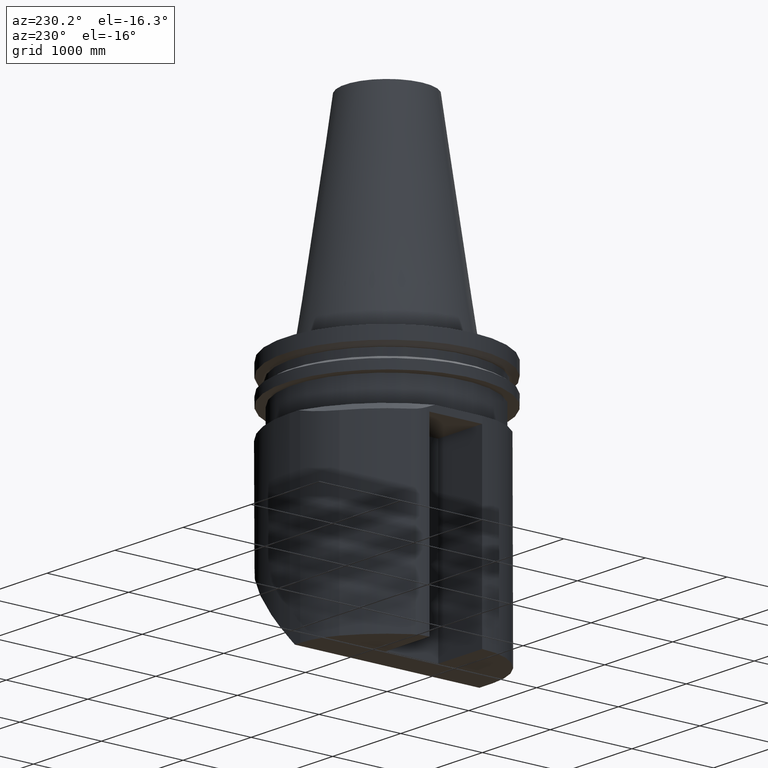
[diagram: clean part render]
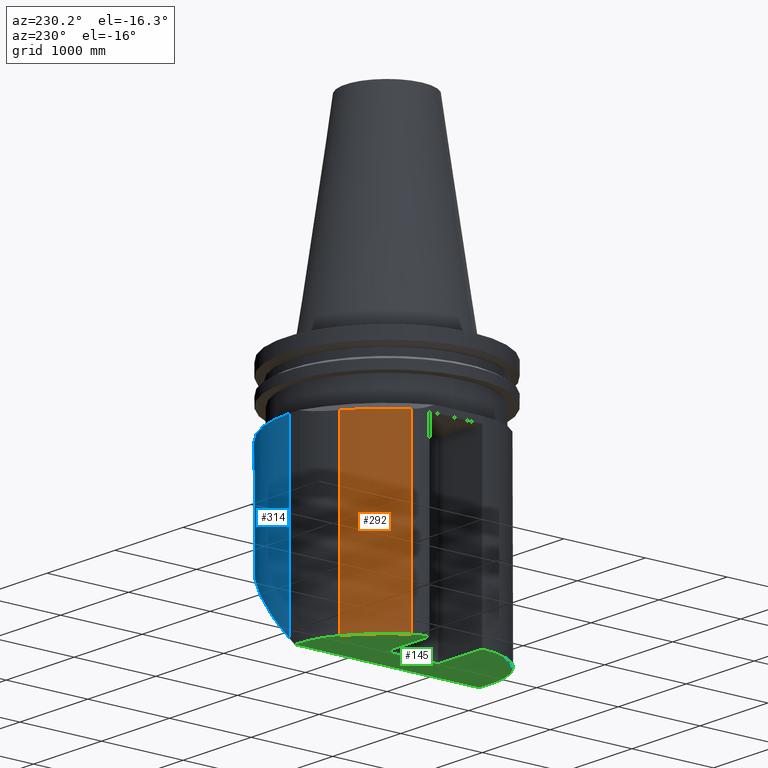
[diagram: same view with three faces highlighted in distinct colors, each labeled with its STEP entity id]
A machine part, auxiliary view with three faces highlighted in distinct colors.
Their STEP definitions:

[orange] entity #292 — the highlighted cylindrical surface (partial cylindrical patch) has radius 1587.5 mm, axis along (0, -0, -1).
#149=EDGE_CURVE('Unnamed[1]',#406,#407,#408,.T.);
#172=EDGE_CURVE('Unnamed[1]',#441,#407,#442,.T.);
#197=EDGE_CURVE('Unnamed[1]',#454,#406,#479,.T.);
#256=EDGE_CURVE('Unnamed[1]',#454,#441,#556,.T.);
#292=ADVANCED_FACE('Unnamed[1]',(#603),#604,.T.);
#406=VERTEX_POINT('',#741);
#407=VERTEX_POINT('',#742);
#408=LINE('',#743,#744);
#441=VERTEX_POINT('',#786);
#442=CIRCLE('',#787,62.5000000000001);
#454=VERTEX_POINT('',#802);
#479=CIRCLE('',#839,62.5000000000001);
#556=LINE('',#955,#956);
#603=FACE_OUTER_BOUND('',#1048,.T.);
#604=CYLINDRICAL_SURFACE('',#1049,62.5000000000001);
#741=CARTESIAN_POINT('',(-34.7885625290881,51.923076923077,-125.0));
#742=CARTESIAN_POINT('',(-34.788562529088,51.923076923077,-37.9289321881347));
#743=CARTESIAN_POINT('',(-34.788562529088,51.923076923077,-315.0));
#744=VECTOR('',#1203,1.0);
#786=CARTESIAN_POINT('',(-53.2178262076672,32.7736628061353,-37.9289321881323));
#787=AXIS2_PLACEMENT_3D('',#1251,#1252,#1253);
#802=CARTESIAN_POINT('',(-53.2178262076672,32.7736628061353,-125.0));
#839=AXIS2_PLACEMENT_3D('',#1293,#1294,#1295);
#955=CARTESIAN_POINT('',(-53.2178262076672,32.7736628061353,-19.05));
#956=VECTOR('',#1387,1.0);
#1048=EDGE_LOOP('',(#1445,#1446,#1447,#1448));
#1049=AXIS2_PLACEMENT_3D('',#1449,#1450,#1451);
#1203=DIRECTION('',(-1.22464679914735E-016,6.12323399573677E-017,1.0));
#1251=CARTESIAN_POINT('',(4.64495453992761E-015,-2.32247726996381E-015,-37.9289321881346));
#1252=DIRECTION('',(1.22464679914735E-016,-6.12323399573677E-017,-1.0));
#1253=DIRECTION('',(1.0,-4.28626379701574E-016,1.22464679914735E-016));
#1293=CARTESIAN_POINT('',(1.53080849893419E-014,-7.65404249467096E-015,-125.0));
#1294=DIRECTION('',(1.22464679914735E-016,-6.12323399573677E-017,-1.0));
#1295=DIRECTION('',(1.0,-4.28626379701574E-016,1.22464679914735E-016));
#1387=DIRECTION('',(-1.22464679914735E-016,6.12323399573677E-017,1.0));
#1445=ORIENTED_EDGE('',*,*,#256,.T.);
#1446=ORIENTED_EDGE('',*,*,#172,.T.);
#1447=ORIENTED_EDGE('',*,*,#149,.F.);
#1448=ORIENTED_EDGE('',*,*,#197,.F.);
#1449=CARTESIAN_POINT('',(9.97651976463475E-015,-4.98825988231738E-015,-81.4644660940672));
#1450=DIRECTION('',(1.22464679914735E-016,-6.12323399573677E-017,-1.0));
#1451=DIRECTION('',(1.0,-4.28626379701574E-016,1.22464679914735E-016));

[blue] entity #314 — the highlighted cylindrical surface (partial cylindrical patch) has radius 1447.8 mm, axis along (-0, 0, 1).
#119=EDGE_CURVE('Unnamed[1]',#357,#358,#359,.T.);
#138=EDGE_CURVE('Unnamed[1]',#387,#357,#388,.T.);
#300=EDGE_CURVE('Unnamed[1]',#387,#612,#613,.T.);
#314=ADVANCED_FACE('Unnamed[1]',(#630),#631,.T.);
#324=EDGE_CURVE('Unnamed[1]',#358,#612,#645,.T.);
#357=VERTEX_POINT('',#673);
#358=VERTEX_POINT('',#674);
#359=ELLIPSE('',#675,80.6101730552766,57.0);
#387=VERTEX_POINT('',#715);
#388=ELLIPSE('',#716,166.656850809296,57.0);
#612=VERTEX_POINT('',#1064);
#613=CIRCLE('',#1065,57.0);
#630=FACE_OUTER_BOUND('',#1098,.T.);
#631=CYLINDRICAL_SURFACE('',#1099,57.0);
#645=LINE('',#1117,#1118);
#673=CARTESIAN_POINT('',(27.8323961923588,40.7722971338992,-82.1676038076373));
#674=CARTESIAN_POINT('',(-12.0,57.0000000000002,-122.000000000006));
#675=AXIS2_PLACEMENT_3D('',#1150,#1151,#1152);
#715=CARTESIAN_POINT('',(45.0000000000001,-2.14313189850787E-014,-34.9999999999998));
#716=AXIS2_PLACEMENT_3D('',#1180,#1181,#1182);
#1064=CARTESIAN_POINT('',(-12.0,57.0000000000002,-34.9999999999998));
#1065=AXIS2_PLACEMENT_3D('',#1455,#1456,#1457);
#1098=EDGE_LOOP('',(#1472,#1473,#1474,#1475));
#1099=AXIS2_PLACEMENT_3D('',#1476,#1477,#1478);
#1117=CARTESIAN_POINT('',(-11.9999999999999,57.0000000000002,-315.0));
#1118=VECTOR('',#1499,1.0);
#1150=CARTESIAN_POINT('',(-12.0000000000001,1.68203427664044E-013,-122.000000000006));
#1151=DIRECTION('',(-0.707106781186637,3.4638242249423E-016,0.707106781186458));
#1152=DIRECTION('',(-0.707106781186458,3.46382422494143E-016,-0.707106781186637));
#1180=CARTESIAN_POINT('',(-12.0000000000001,1.63941276372061E-013,-191.606212908914));
#1181=DIRECTION('',(-0.939692620785909,4.23719739768133E-016,0.342020143325669));
#1182=DIRECTION('',(-0.342020143325669,1.30944665184072E-016,-0.939692620785908));
#1455=CARTESIAN_POINT('',(-12.0000000000001,1.73530641240335E-013,-34.9999999999998));
#1456=DIRECTION('',(-1.22464679914735E-016,6.12323399573677E-017,1.0));
#1457=DIRECTION('',(5.51091059616309E-016,1.0,-6.12323399573677E-017));
#1472=ORIENTED_EDGE('',*,*,#138,.T.);
#1473=ORIENTED_EDGE('',*,*,#119,.T.);
#1474=ORIENTED_EDGE('',*,*,#324,.T.);
#1475=ORIENTED_EDGE('',*,*,#300,.F.);
#1476=CARTESIAN_POINT('',(-12.0000000000001,1.56385586052272E-013,-315.0));
#1477=DIRECTION('',(-1.22464679914735E-016,6.12323399573677E-017,1.0));
#1478=DIRECTION('',(5.51091059616309E-016,1.0,-6.12323399573677E-017));
#1499=DIRECTION('',(-1.22464679914735E-016,6.12323399573677E-017,1.0));

[green] entity #145 — the highlighted planar face has unit normal (0, -0, -1).
#145=ADVANCED_FACE('Unnamed[1]',(#399),#400,.T.);
#147=EDGE_CURVE('Unnamed[1]',#402,#403,#404,.T.);
#180=EDGE_CURVE('Unnamed[1]',#453,#454,#455,.T.);
#182=EDGE_CURVE('Unnamed[1]',#369,#457,#458,.T.);
#186=EDGE_CURVE('Unnamed[1]',#457,#402,#464,.T.);
#197=EDGE_CURVE('Unnamed[1]',#454,#406,#479,.T.);
#222=EDGE_CURVE('Unnamed[1]',#505,#453,#513,.T.);
#224=EDGE_CURVE('Unnamed[1]',#362,#372,#515,.T.);
#252=EDGE_CURVE('Unnamed[1]',#403,#460,#552,.T.);
#272=EDGE_CURVE('Unnamed[1]',#406,#369,#578,.T.);
#294=EDGE_CURVE('Unnamed[1]',#460,#362,#606,.T.);
#326=EDGE_CURVE('Unnamed[1]',#372,#505,#647,.T.);
#362=VERTEX_POINT('',#679);
#369=VERTEX_POINT('',#690);
#372=VERTEX_POINT('',#695);
#399=FACE_OUTER_BOUND('',#731,.T.);
#400=PLANE('',#732);
#402=VERTEX_POINT('',#735);
#403=VERTEX_POINT('',#736);
#404=LINE('',#737,#738);
#406=VERTEX_POINT('',#741);
#453=VERTEX_POINT('',#801);
#454=VERTEX_POINT('',#802);
#455=CIRCLE('',#803,11.9998183436439);
#457=VERTEX_POINT('',#806);
#458=LINE('',#807,#808);
#460=VERTEX_POINT('',#811);
#464=LINE('',#817,#818);
#479=CIRCLE('',#839,62.5000000000001);
#505=VERTEX_POINT('',#881);
#513=LINE('',#892,#893);
#515=LINE('',#896,#897);
#552=CIRCLE('',#948,32.0);
#578=CIRCLE('',#1012,30.0);
#606=LINE('',#1052,#1053);
#647=LINE('',#1121,#1122);
#679=CARTESIAN_POINT('',(-29.6000000000001,2.32406973787728E-013,-125.0));
#690=CARTESIAN_POINT('',(-18.0900525151257,57.0000000000001,-125.0));
#695=CARTESIAN_POINT('',(-29.6000000000001,25.4000000000003,-125.0));
#731=EDGE_LOOP('',(#1188,#1189,#1190,#1191,#1192,#1193,#1194,#1195,#1196,#1197,#1198));
#732=AXIS2_PLACEMENT_3D('',#1199,#1200,#1201);
#735=CARTESIAN_POINT('',(-14.9999999999931,-31.9999999999998,-125.0));
#736=CARTESIAN_POINT('',(-23.0000000000003,-31.9999999999998,-125.0));
#737=CARTESIAN_POINT('',(13.1249999999998,-31.9999999999999,-125.0));
#738=VECTOR('',#1202,1.0);
#741=CARTESIAN_POINT('',(-34.7885625290881,51.923076923077,-125.0));
#801=CARTESIAN_POINT('',(-54.9999999232547,26.482481453303,-125.0));
#802=CARTESIAN_POINT('',(-53.2178262076672,32.7736628061353,-125.0));
#803=AXIS2_PLACEMENT_3D('',#1270,#1271,#1272);
#806=CARTESIAN_POINT('',(-14.9999999999931,57.0000000000001,-125.0));
#807=CARTESIAN_POINT('',(8.10248687121886,56.9999999999999,-125.0));
#808=VECTOR('',#1273,1.0);
#811=CARTESIAN_POINT('',(-55.0000000000002,3.00137504281143E-013,-125.0));
#817=CARTESIAN_POINT('',(-14.9999999999931,-1.22464679915032E-015,-125.0));
#818=VECTOR('',#1275,1.0);
#839=AXIS2_PLACEMENT_3D('',#1293,#1294,#1295);
#881=CARTESIAN_POINT('',(-54.9999999263917,25.4000000000002,-125.0));
#892=CARTESIAN_POINT('',(-54.9999999808134,6.62062296891842,-125.0));
#893=VECTOR('',#1333,1.0);
#896=CARTESIAN_POINT('',(-29.6000000000001,6.35000000000013,-125.0));
#897=VECTOR('',#1334,1.0);
#948=AXIS2_PLACEMENT_3D('',#1383,#1384,#1385);
#1012=AXIS2_PLACEMENT_3D('',#1407,#1408,#1409);
#1052=CARTESIAN_POINT('',(-5.52499999999994,1.68209631921846E-013,-125.0));
#1053=VECTOR('',#1452,1.0);
#1121=CARTESIAN_POINT('',(-5.52499998159798,25.4000000000003,-125.0));
#1122=VECTOR('',#1500,1.0);
#1188=ORIENTED_EDGE('',*,*,#294,.T.);
#1189=ORIENTED_EDGE('',*,*,#224,.T.);
#1190=ORIENTED_EDGE('',*,*,#326,.T.);
#1191=ORIENTED_EDGE('',*,*,#222,.T.);
#1192=ORIENTED_EDGE('',*,*,#180,.T.);
#1193=ORIENTED_EDGE('',*,*,#197,.T.);
#1194=ORIENTED_EDGE('',*,*,#272,.T.);
#1195=ORIENTED_EDGE('',*,*,#182,.T.);
#1196=ORIENTED_EDGE('',*,*,#186,.T.);
#1197=ORIENTED_EDGE('',*,*,#147,.T.);
#1198=ORIENTED_EDGE('',*,*,#252,.T.);
#1199=CARTESIAN_POINT('',(31.2500000000001,-2.10486168603452E-014,-125.0));
#1200=DIRECTION('',(5.77212030801198E-016,-6.12323399573679E-017,-1.0));
#1201=DIRECTION('',(1.0,-4.28626379701574E-016,5.77212030801198E-016));
#1202=DIRECTION('',(-1.0,2.00761023694624E-015,-5.77212030801199E-016));
#1270=CARTESIAN_POINT('',(-43.000181647947,26.4811768163477,-125.0));
#1271=DIRECTION('',(5.77212030801198E-016,-6.12323399573679E-017,-1.0));
#1272=DIRECTION('',(5.51091059616309E-016,1.0,-6.12323399573676E-017));
#1273=DIRECTION('',(1.0,-9.76244061523188E-015,5.77212030801199E-016));
#1275=DIRECTION('',(-4.28626379701574E-016,-1.0,6.12323399573677E-017));
#1293=CARTESIAN_POINT('',(1.53080849893419E-014,-7.65404249467096E-015,-125.0));
#1294=DIRECTION('',(1.22464679914735E-016,-6.12323399573677E-017,-1.0));
#1295=DIRECTION('',(1.0,-4.28626379701574E-016,1.22464679914735E-016));
#1333=DIRECTION('',(2.89794870197047E-009,1.0,-6.12323382846371E-017));
#1334=DIRECTION('',(5.68496996977184E-016,1.0,-6.12323399573676E-017));
#1383=CARTESIAN_POINT('',(-23.0000000000002,1.72734620820889E-013,-125.0));
#1384=DIRECTION('',(5.77212030801198E-016,-6.12323399573679E-017,-1.0));
#1385=DIRECTION('',(5.51091059616309E-016,1.0,-6.12323399573676E-017));
#1407=CARTESIAN_POINT('',(-18.0900525151258,27.0000000000001,-125.0));
#1408=DIRECTION('',(5.77212030801199E-016,-6.12323399573679E-017,-1.0));
#1409=DIRECTION('',(5.51091059616309E-016,1.0,-6.12323399573676E-017));
#1452=DIRECTION('',(1.0,-2.66655625611138E-015,5.77212030801199E-016));
#1500=DIRECTION('',(-1.0,-1.80930350319364E-015,-5.77212030801198E-016));